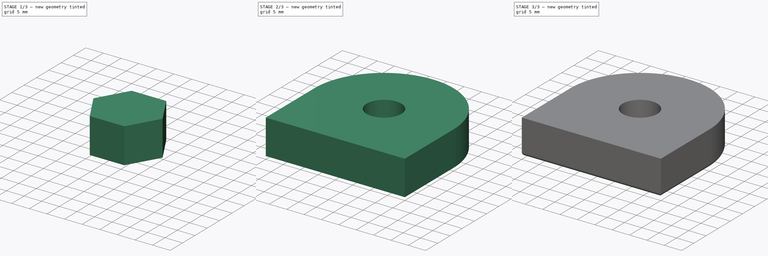
[diagram: build sequence overview — one tinted view per stage of 3, left to right]
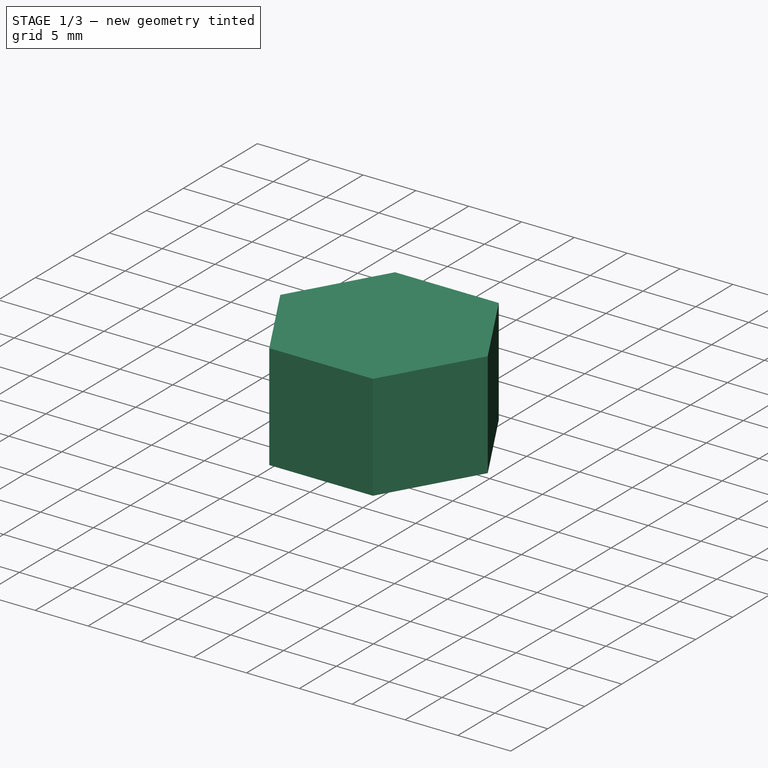
[diagram: stage 1 of 3 — iso view after this stage's code; geometry added in this stage tinted green]
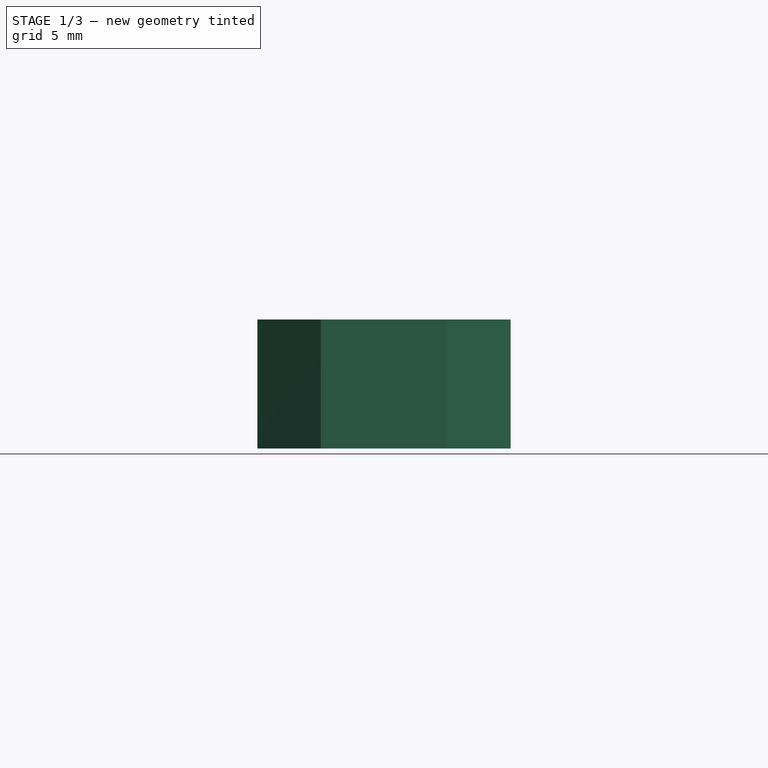
[diagram: stage 1 of 3 — front view after this stage's code; geometry added in this stage tinted green]
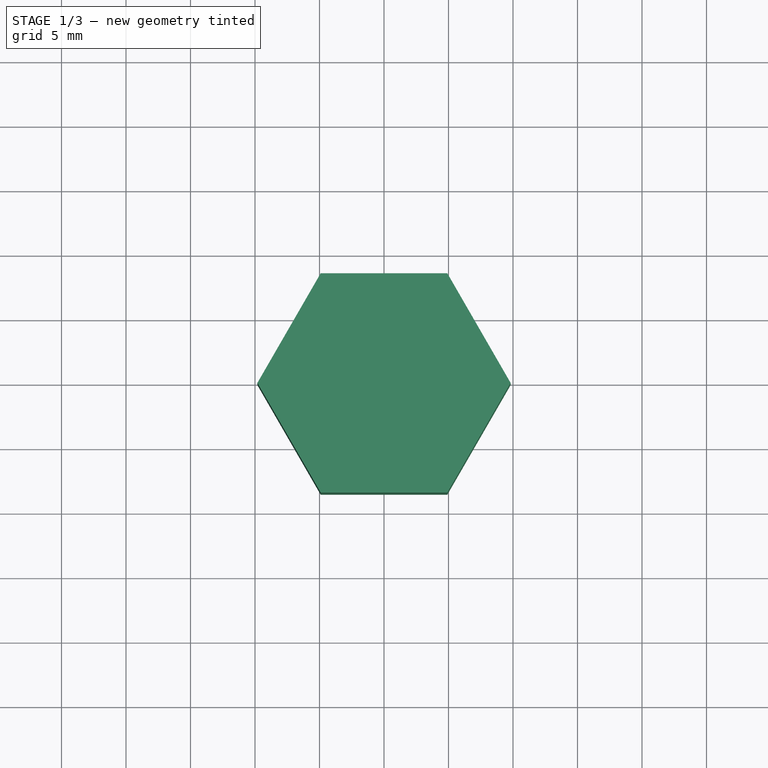
[diagram: stage 1 of 3 — top view after this stage's code; geometry added in this stage tinted green]
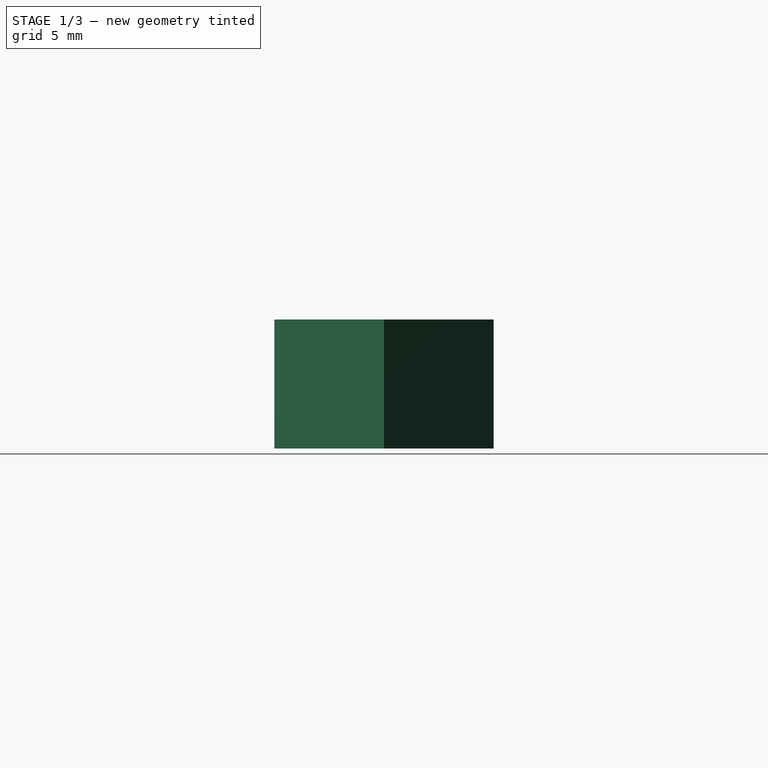
[diagram: stage 1 of 3 — right view after this stage's code; geometry added in this stage tinted green]
FCSTD DOCUMENT  (FreeCAD 0.17R13519 (Git))
Label: test001
License: All rights reserved
LicenseURL: http://en.wikipedia.org/wiki/All_rights_reserved
objects: Sketcher::SketchObject×3, Part::Extrusion×3, Part::Cut×2, PartDesign::FeatureBase×1, PartDesign::Fillet×1, PartDesign::Body×1
note: 11 computed .brp shape members not serialized (recipe doc carries the construction recipe); baked Part::Feature solids carry a one-line shape summary decoded from their .brp

FEATURE [Sketcher::SketchObject] Sketch
  sketch-geometry (4):
    g0: ArcOfCircle CenterX=0 CenterY=0 CenterZ=0 NormalX=0 NormalY=0 NormalZ=1 AngleXU=0 Radius=20 StartAngle=0 EndAngle=3.14159
    g1: LineSegment StartX=20 StartY=0 StartZ=0 EndX=20 EndY=-20 EndZ=0
    g2: LineSegment StartX=20 StartY=-20 StartZ=0 EndX=-20 EndY=-20 EndZ=0
    g3: LineSegment StartX=-20 StartY=-20 StartZ=0 EndX=-20 EndY=0 EndZ=0
  constraints (10):
    c: Radius(g0) = 20
    c: PointOnObject(g0,g-2)
    c: PointOnObject(g0,g-1)
    c: Angle(g0) = 3.14159
    c: PointOnObject(g0,g-1)
    c: Coincident(g1,g2)
    c: Coincident(g2,g3)
    c: Horizontal(g2)
    c: Vertical(g1)
    c: Vertical(g3)
FEATURE [Part::Extrusion] Extrude
  Base = -> Sketch
  Dir = (0,0,1)
  DirMode = 2
  FaceMakerClass = Part::FaceMakerBullseye
  LengthFwd = 10
  LengthRev = 0
  Solid = true
  Symmetric = false
FEATURE [Sketcher::SketchObject] Sketch001
  MapMode = 5
  Placement = pos=(0,0,0) rot=(1,0,0;3.14159rad)
  Support = -> [Extrude]
  sketch-geometry (7):
    g0: LineSegment StartX=9.81495 StartY=0 StartZ=0 EndX=4.90748 EndY=8.5 EndZ=0
    g1: LineSegment StartX=4.90748 StartY=8.5 StartZ=0 EndX=-4.90748 EndY=8.5 EndZ=0
    g2: LineSegment StartX=-4.90748 StartY=8.5 StartZ=0 EndX=-9.81495 EndY=0 EndZ=0
    g3: LineSegment StartX=-9.81495 StartY=0 StartZ=0 EndX=-4.90748 EndY=-8.5 EndZ=0
    g4: LineSegment StartX=-4.90748 StartY=-8.5 StartZ=0 EndX=4.90748 EndY=-8.5 EndZ=0
    g5: LineSegment StartX=4.90748 StartY=-8.5 StartZ=0 EndX=9.81495 EndY=0 EndZ=0
    g6: Circle [constr] CenterX=0 CenterY=0 CenterZ=0 NormalX=0 NormalY=0 NormalZ=1 AngleXU=0 Radius=9.81495
  constraints (16):
    c: Coincident(g0,g1)
    c: Coincident(g1,g2)
    c: Coincident(g2,g3)
    c: Coincident(g3,g4)
    c: Coincident(g4,g5)
    c: Coincident(g5,g0)
    c: Equal(g0, g1-g5) x5
    c: PointOnObject(g0,g6)
    c: PointOnObject(g1,g6)
    c: PointOnObject(g2,g6)
    c: PointOnObject(g3,g6)
    c: PointOnObject(g4,g6)
    c: PointOnObject(g5,g6)
    c: Coincident(g6,g-1)
    c: Distance(g-1,g2) = 8.5
    c: DistanceY(g0,g-1) = 0
FEATURE [Part::Extrusion] Extrude001
  Base = -> Sketch001
  Dir = (0,0,-1)
  DirMode = 2
  FaceMakerClass = Part::FaceMakerBullseye
  LengthFwd = 10
  LengthRev = 0
  Solid = true
  Symmetric = true
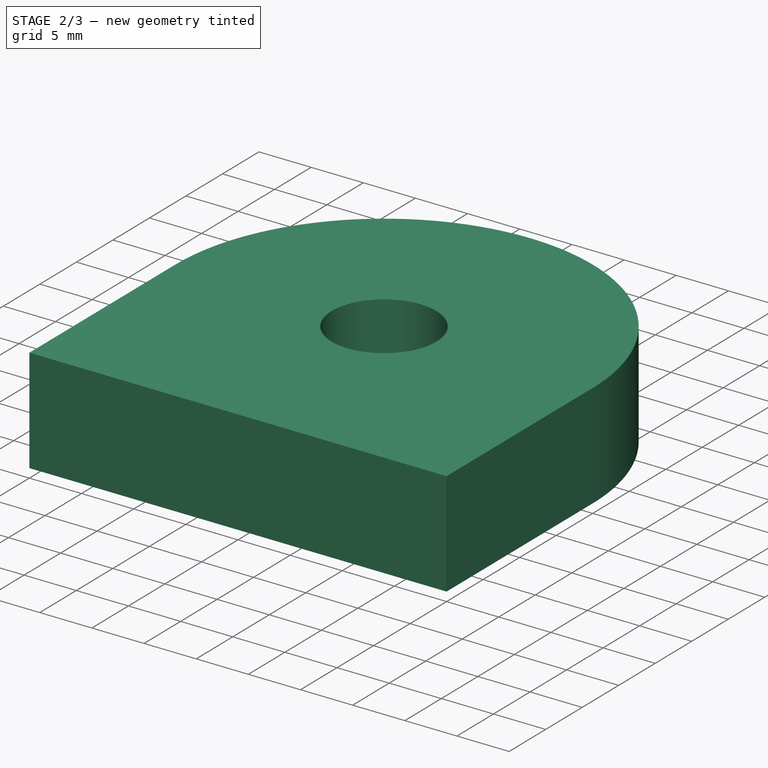
[diagram: stage 2 of 3 — iso view after this stage's code; geometry added in this stage tinted green]
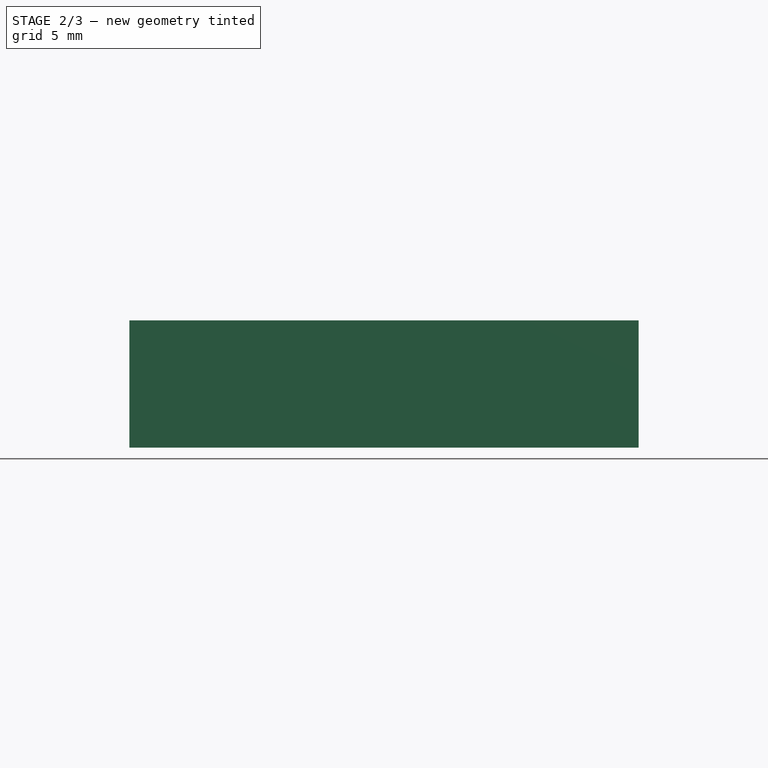
[diagram: stage 2 of 3 — front view after this stage's code; geometry added in this stage tinted green]
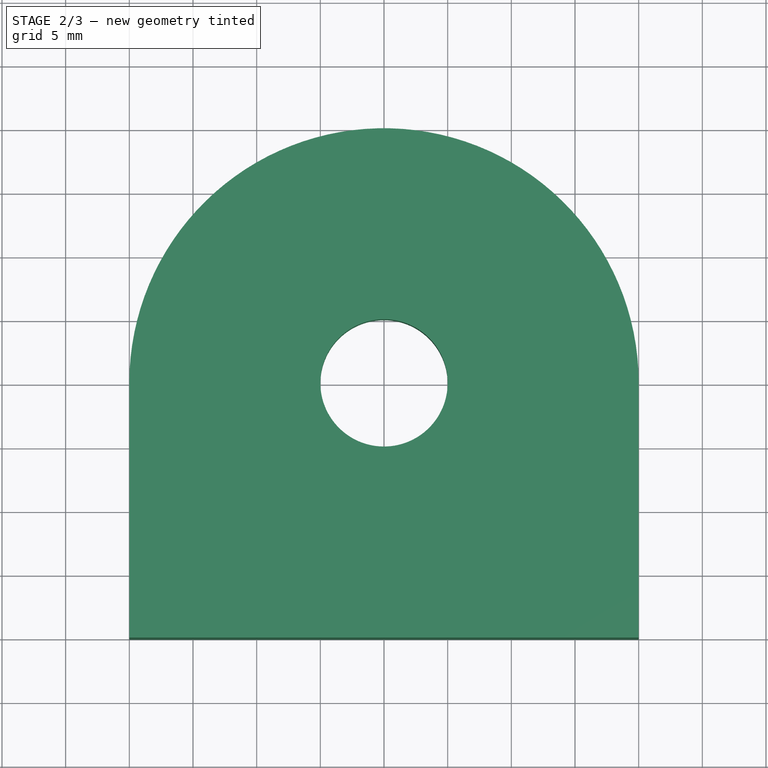
[diagram: stage 2 of 3 — top view after this stage's code; geometry added in this stage tinted green]
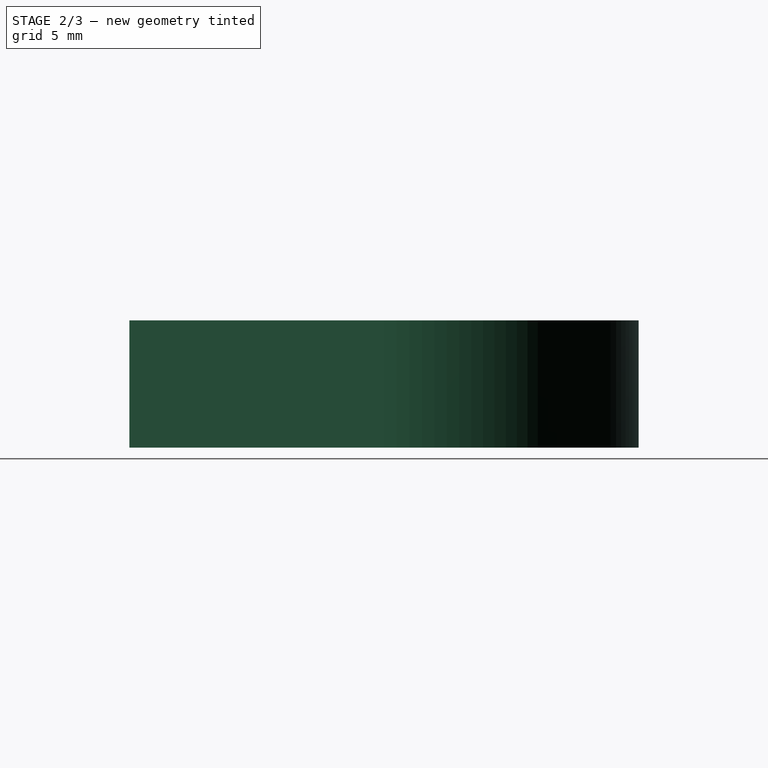
[diagram: stage 2 of 3 — right view after this stage's code; geometry added in this stage tinted green]
FEATURE [Part::Cut] Cut
  Base = -> Extrude
  Tool = -> Extrude001
FEATURE [Sketcher::SketchObject] Sketch002
  MapMode = 5
  Placement = pos=(0,0,5) rot=(1,0,0;3.14159rad)
  Support = -> [Cut]
  sketch-geometry (1):
    g0: Circle CenterX=0 CenterY=0 CenterZ=0 NormalX=0 NormalY=0 NormalZ=1 AngleXU=0 Radius=5
  constraints (1):
    c: Radius(g0) = 5
FEATURE [Part::Extrusion] Extrude005
  Base = -> Sketch002
  Dir = (0,0,1)
  DirMode = 0
  FaceMakerClass = Part::FaceMakerBullseye
  LengthFwd = 10
  LengthRev = 0
  Solid = true
  Symmetric = false
FEATURE [Part::Cut] Cut001
  Base = -> Cut
  Tool = -> Extrude005
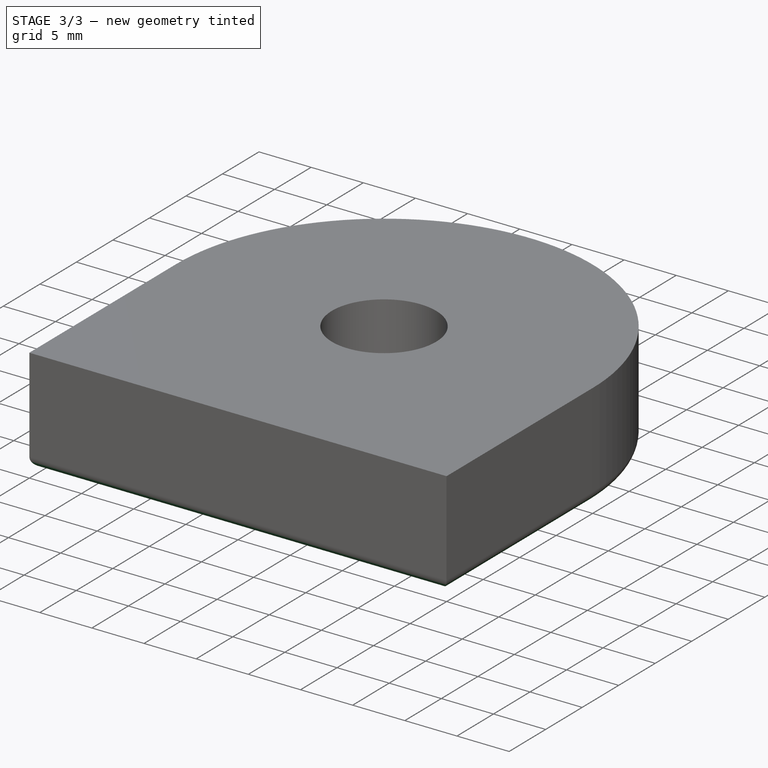
[diagram: stage 3 of 3 — iso view after this stage's code; geometry added in this stage tinted green]
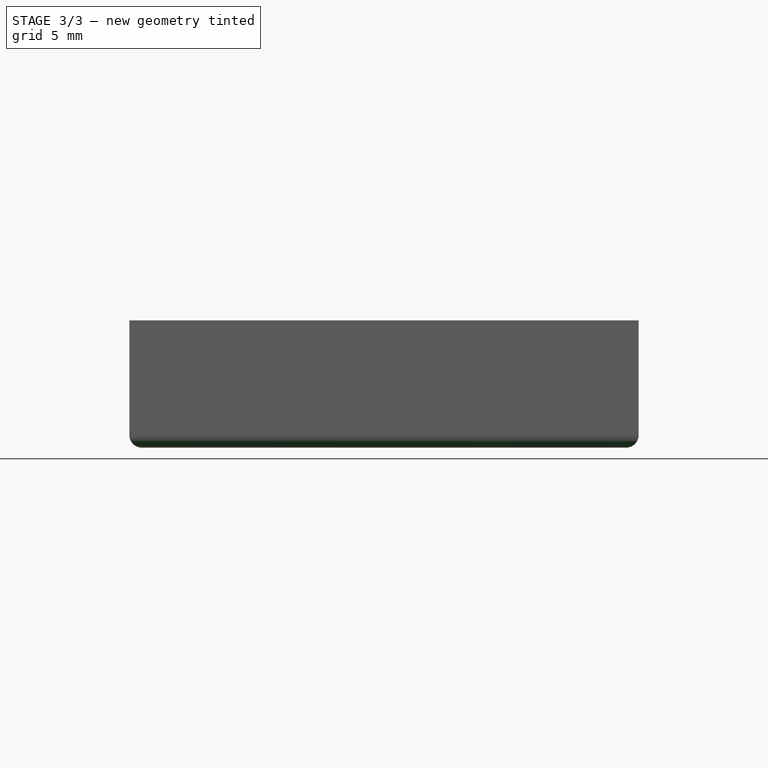
[diagram: stage 3 of 3 — front view after this stage's code; geometry added in this stage tinted green]
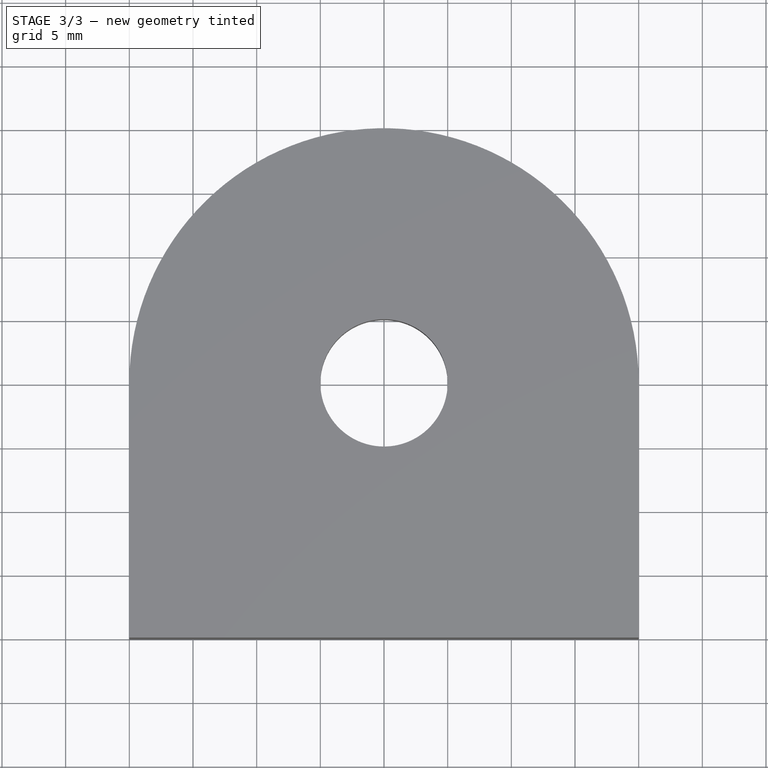
[diagram: stage 3 of 3 — top view after this stage's code; geometry added in this stage tinted green]
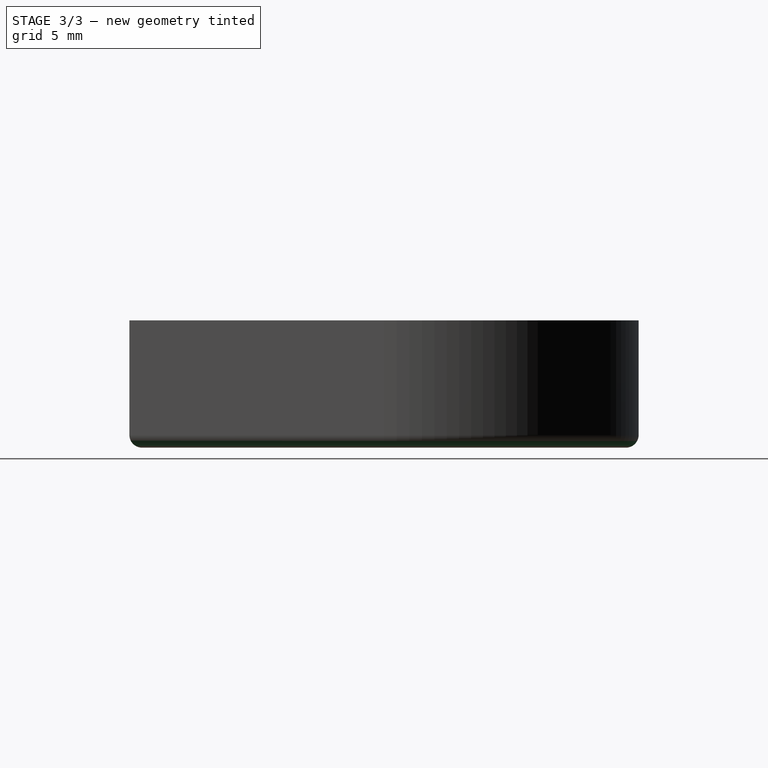
[diagram: stage 3 of 3 — right view after this stage's code; geometry added in this stage tinted green]
FEATURE [PartDesign::FeatureBase] BaseFeature
  BaseFeature = -> Cut001
FEATURE [PartDesign::Fillet] Fillet
  Base = -> BaseFeature [Edge3,Edge6,Edge11,Edge9]
  BaseFeature = -> BaseFeature
  Radius = 1
FEATURE [PartDesign::Body] Body
  BaseFeature = -> Cut001
  Group = -> [BaseFeature,Fillet]
  Origin = -> Origin
  Placement = pos=(0,0,0) rot=(0,1,0;3.14159rad)
  Tip = -> Fillet
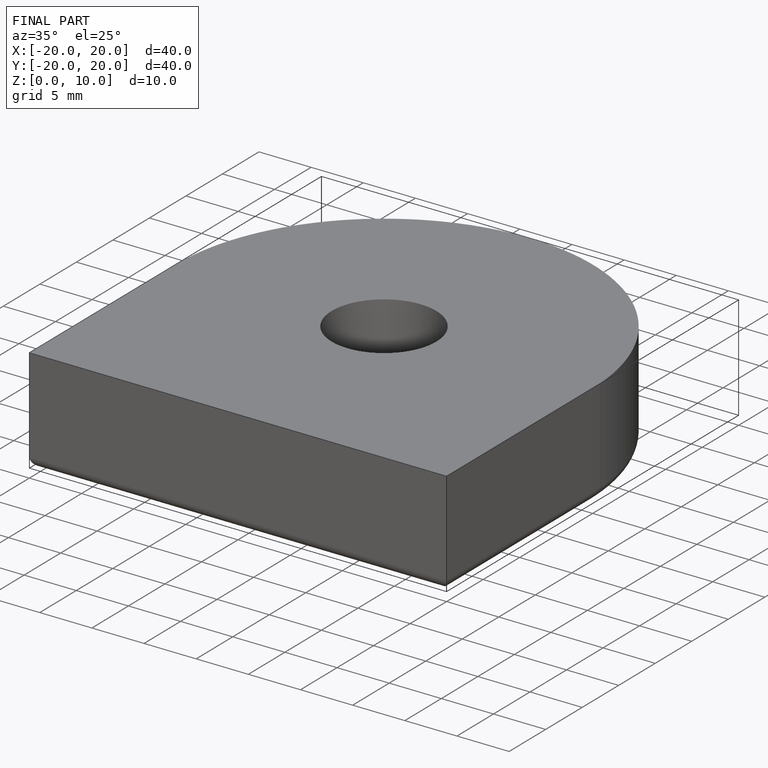
[diagram: finished part — iso view with bounding-box wireframe]
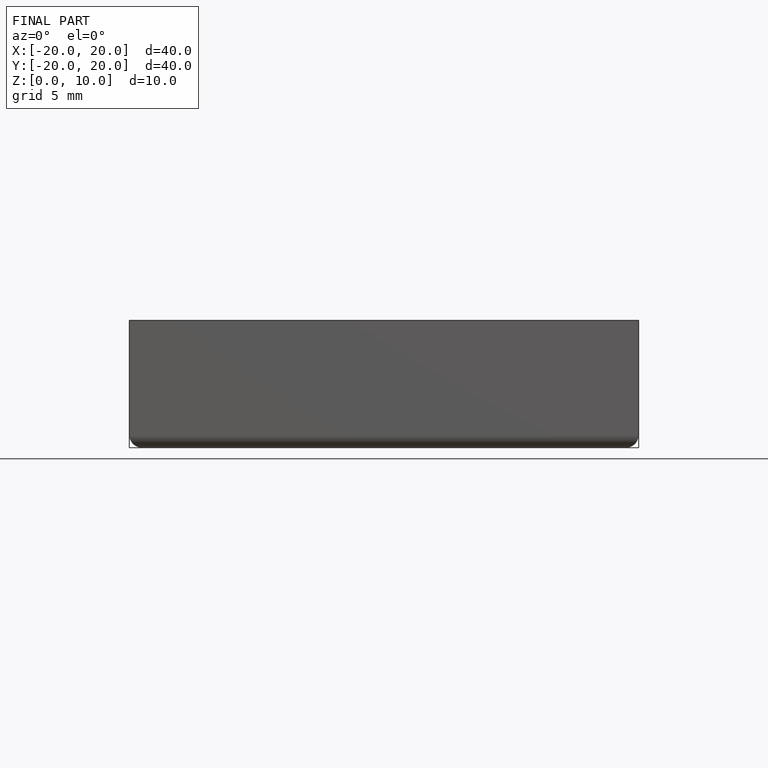
[diagram: finished part — front view with bounding-box wireframe]
